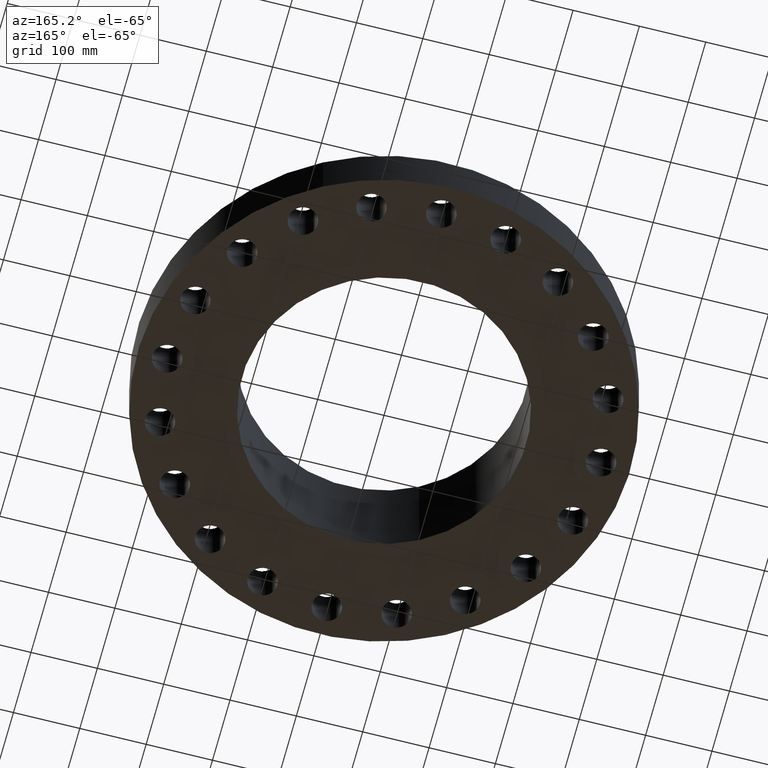
[diagram: clean part render]
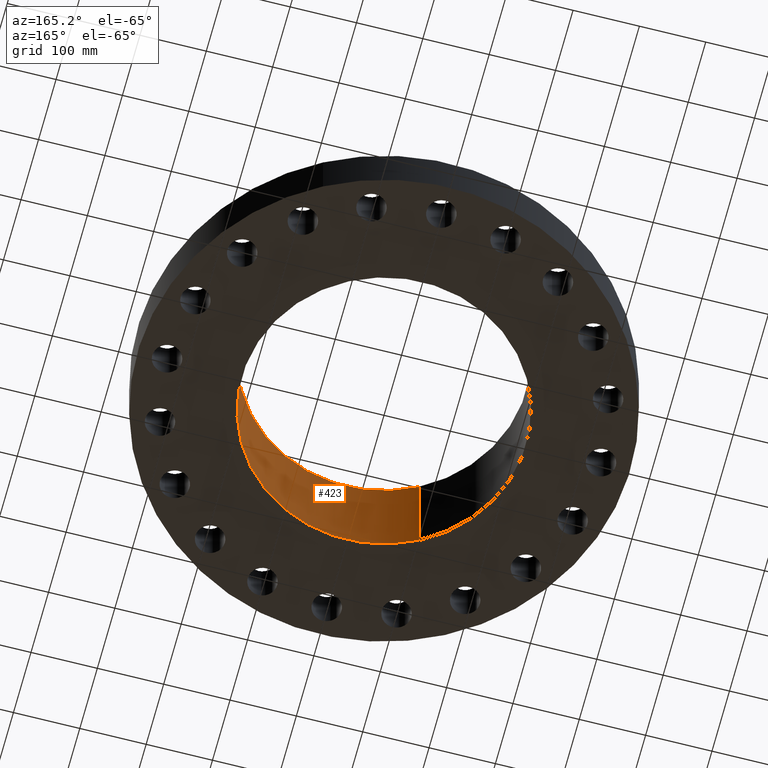
[diagram: same view with one face highlighted and labeled with its STEP entity id]
A machine part, auxiliary view. The second image highlights one B-rep face of the part: STEP entity #423.
In plain terms, the highlighted cylindrical surface (partial cylindrical patch) has radius 214.325 mm, axis along (0, 0, -1).
Its self-contained STEP definition (entity closure, byte-faithful):
#365=AXIS2_PLACEMENT_3D('Circle Axis2P3D',#363,#364,$) ;
#384=AXIS2_PLACEMENT_3D('Cylinder Axis2P3D',#381,#382,#383) ;
#414=AXIS2_PLACEMENT_3D('Circle Axis2P3D',#412,#413,$) ;
#358=CARTESIAN_POINT('Vertex',(-4.04539269476,-7.40504165726,7.25000000003)) ;
#360=CARTESIAN_POINT('Vertex',(4.04539269476,7.40504165726,7.25000000003)) ;
#363=CARTESIAN_POINT('Axis2P3D Location',(0.,0.,7.25000000003)) ;
#381=CARTESIAN_POINT('Axis2P3D Location',(0.,0.,3.62500000001)) ;
#386=CARTESIAN_POINT('Line Origine',(-4.04539269476,-7.40504165726,3.62500000001)) ;
#390=CARTESIAN_POINT('Vertex',(-4.04539269476,-7.40504165726,-5.59482469102E-014)) ;
#397=CARTESIAN_POINT('Vertex',(4.04539269476,7.40504165726,-5.59482469102E-014)) ;
#400=CARTESIAN_POINT('Line Origine',(4.04539269476,7.40504165726,3.62500000001)) ;
#412=CARTESIAN_POINT('Axis2P3D Location',(0.,0.,-5.59482469102E-014)) ;
#364=DIRECTION('Axis2P3D Direction',(0.,0.,-0.0393700787402)) ;
#382=DIRECTION('Axis2P3D Direction',(0.,0.,-0.0393700787402)) ;
#383=DIRECTION('Axis2P3D XDirection',(0.0188750212049,0.0345504945626,0.)) ;
#387=DIRECTION('Vector Direction',(0.,0.,-0.0393700787402)) ;
#401=DIRECTION('Vector Direction',(0.,0.,-0.0393700787402)) ;
#413=DIRECTION('Axis2P3D Direction',(0.,0.,-0.0393700787402)) ;
#388=VECTOR('Line Direction',#387,0.0393700787402) ;
#402=VECTOR('Line Direction',#401,0.0393700787402) ;
#418=ORIENTED_EDGE('',*,*,#367,.F.) ;
#419=ORIENTED_EDGE('',*,*,#404,.T.) ;
#420=ORIENTED_EDGE('',*,*,#416,.T.) ;
#421=ORIENTED_EDGE('',*,*,#392,.F.) ;
#423=ADVANCED_FACE('PartBody',(#422),#385,.F.) ;
#366=CIRCLE('generated circle',#365,8.43800000003) ;
#415=CIRCLE('generated circle',#414,8.43800000003) ;
#385=CYLINDRICAL_SURFACE('generated cylinder',#384,8.43800000003) ;
#367=EDGE_CURVE('',#361,#359,#366,.T.) ;
#392=EDGE_CURVE('',#359,#391,#389,.T.) ;
#404=EDGE_CURVE('',#361,#398,#403,.T.) ;
#416=EDGE_CURVE('',#398,#391,#415,.T.) ;
#417=EDGE_LOOP('',(#418,#419,#420,#421)) ;
#422=FACE_OUTER_BOUND('',#417,.T.) ;
#389=LINE('Line',#386,#388) ;
#403=LINE('Line',#400,#402) ;
#359=VERTEX_POINT('',#358) ;
#361=VERTEX_POINT('',#360) ;
#391=VERTEX_POINT('',#390) ;
#398=VERTEX_POINT('',#397) ;